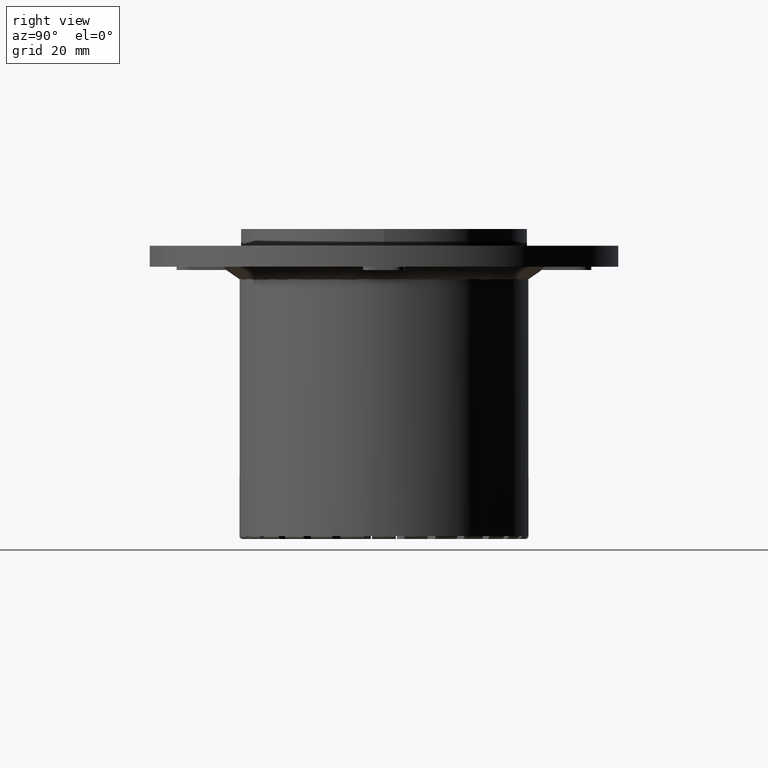
[diagram: clean part render]
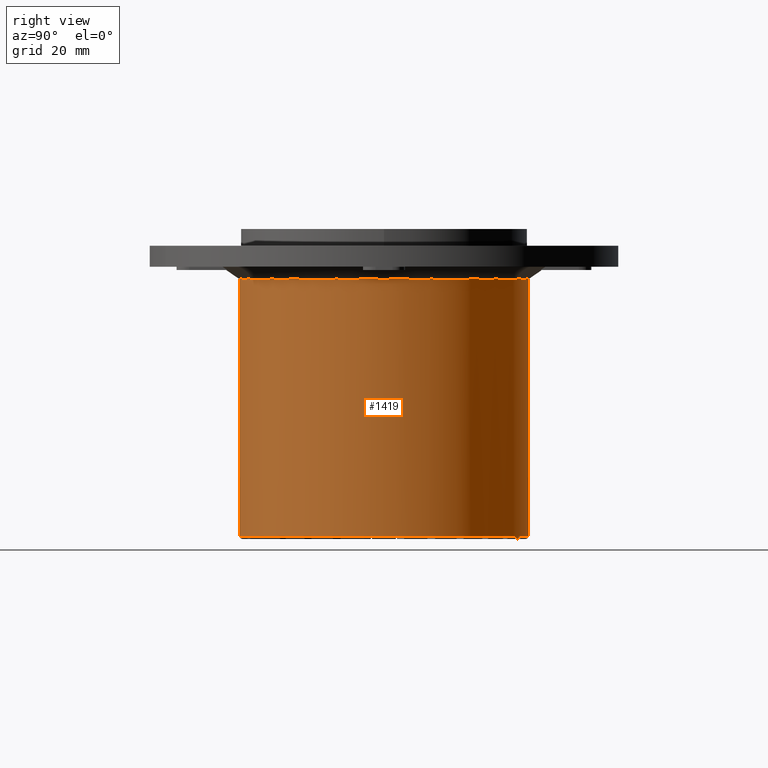
[diagram: same view with one face highlighted and labeled with its STEP entity id]
A machine part, right view. The second image highlights one B-rep face of the part: STEP entity #1419.
In plain terms, the highlighted cylindrical surface (bore or boss wall) has radius 34.5 mm, axis along (0, 0, 1).
Its self-contained STEP definition (entity closure, byte-faithful):
#692=CARTESIAN_POINT('',(4.872188245533611,34.154235194190548,0.0));
#693=VERTEX_POINT('',#692);
#707=CARTESIAN_POINT('',(10.429277344970007,32.885865870639549,0.0));
#708=VERTEX_POINT('',#707);
#709=CARTESIAN_POINT('',(0.0,0.0,0.0));
#710=DIRECTION('',(0.0,0.0,-1.0));
#711=DIRECTION('',(0.222520933956314,0.974927912181824,0.0));
#712=AXIS2_PLACEMENT_3D('',#709,#710,#711);
#713=CIRCLE('',#712,34.5);
#714=EDGE_CURVE('',#693,#708,#713,.T.);
#780=CARTESIAN_POINT('',(0.0,0.0,0.0));
#781=DIRECTION('',(0.0,0.0,1.0));
#782=DIRECTION('',(-1.0,0.0,0.0));
#783=AXIS2_PLACEMENT_3D('',#780,#781,#782);
#784=CYLINDRICAL_SURFACE('',#783,34.5);
#785=ORIENTED_EDGE('',*,*,#714,.F.);
#786=CARTESIAN_POINT('',(2.849999999999995,34.38208108884627,0.0));
#787=VERTEX_POINT('',#786);
#788=CARTESIAN_POINT('',(0.0,0.0,0.0));
#789=DIRECTION('',(0.0,0.0,-1.0));
#790=DIRECTION('',(-1.0,0.0,0.0));
#791=AXIS2_PLACEMENT_3D('',#788,#789,#790);
#792=CIRCLE('',#791,34.5);
#793=EDGE_CURVE('',#787,#693,#792,.T.);
#794=ORIENTED_EDGE('',*,*,#793,.F.);
#795=CARTESIAN_POINT('',(-2.850000000000005,34.38208108884627,0.0));
#796=VERTEX_POINT('',#795);
#797=CARTESIAN_POINT('',(0.0,0.0,0.0));
#798=DIRECTION('',(0.0,0.0,-1.0));
#799=DIRECTION('',(0.0,1.0,0.0));
#800=AXIS2_PLACEMENT_3D('',#797,#798,#799);
#801=CIRCLE('',#800,34.5);
#802=EDGE_CURVE('',#796,#787,#801,.T.);
#803=ORIENTED_EDGE('',*,*,#802,.F.);
#804=CARTESIAN_POINT('',(-4.872188245533614,34.154235194190548,0.0));
#805=VERTEX_POINT('',#804);
#806=CARTESIAN_POINT('',(0.0,0.0,0.0));
#807=DIRECTION('',(0.0,0.0,-1.0));
#808=DIRECTION('',(-1.0,0.0,0.0));
#809=AXIS2_PLACEMENT_3D('',#806,#807,#808);
#810=CIRCLE('',#809,34.5);
#811=EDGE_CURVE('',#805,#796,#810,.T.);
#812=ORIENTED_EDGE('',*,*,#811,.F.);
#813=CARTESIAN_POINT('',(-10.429277344970009,32.885865870639556,0.0));
#814=VERTEX_POINT('',#813);
#815=CARTESIAN_POINT('',(0.0,0.0,0.0));
#816=DIRECTION('',(0.0,0.0,-1.0));
#817=DIRECTION('',(-0.222520933956315,0.974927912181824,0.0));
#818=AXIS2_PLACEMENT_3D('',#815,#816,#817);
#819=CIRCLE('',#818,34.499999999999993);
#820=EDGE_CURVE('',#814,#805,#819,.T.);
#821=ORIENTED_EDGE('',*,*,#820,.F.);
#822=CARTESIAN_POINT('',(-12.350064627949813,32.213753331232041,0.0));
#823=VERTEX_POINT('',#822);
#824=CARTESIAN_POINT('',(0.0,0.0,0.0));
#825=DIRECTION('',(0.0,0.0,-1.0));
#826=DIRECTION('',(-1.0,0.0,0.0));
#827=AXIS2_PLACEMENT_3D('',#824,#825,#826);
#828=CIRCLE('',#827,34.5);
#829=EDGE_CURVE('',#823,#814,#828,.T.);
#830=ORIENTED_EDGE('',*,*,#829,.F.);
#831=CARTESIAN_POINT('',(-17.485587174993601,29.74061601826196,0.0));
#832=VERTEX_POINT('',#831);
#833=CARTESIAN_POINT('',(0.0,0.0,0.0));
#834=DIRECTION('',(0.0,0.0,-1.0));
#835=DIRECTION('',(-0.433883739117558,0.900968867902419,0.0));
#836=AXIS2_PLACEMENT_3D('',#833,#834,#835);
#837=CIRCLE('',#836,34.5);
#838=EDGE_CURVE('',#832,#823,#837,.T.);
#839=ORIENTED_EDGE('',*,*,#838,.F.);
#840=CARTESIAN_POINT('',(-19.20865720054179,28.657939363326083,0.0));
#841=VERTEX_POINT('',#840);
#842=CARTESIAN_POINT('',(0.0,0.0,0.0));
#843=DIRECTION('',(0.0,0.0,-1.0));
#844=DIRECTION('',(-1.0,0.0,0.0));
#845=AXIS2_PLACEMENT_3D('',#842,#843,#844);
#846=CIRCLE('',#845,34.5);
#847=EDGE_CURVE('',#841,#832,#846,.T.);
#848=ORIENTED_EDGE('',*,*,#847,.F.);
#849=CARTESIAN_POINT('',(-23.665096650609563,25.104047492731301,0.0));
#850=VERTEX_POINT('',#849);
#851=CARTESIAN_POINT('',(0.0,0.0,0.0));
#852=DIRECTION('',(0.0,0.0,-1.0));
#853=DIRECTION('',(-0.623489801858734,0.78183148246803,0.0));
#854=AXIS2_PLACEMENT_3D('',#851,#852,#853);
#855=CIRCLE('',#854,34.5);
#856=EDGE_CURVE('',#850,#841,#855,.T.);
#857=ORIENTED_EDGE('',*,*,#856,.F.);
#858=CARTESIAN_POINT('',(-25.104047492731301,23.665096650609556,0.0));
#859=VERTEX_POINT('',#858);
#860=CARTESIAN_POINT('',(0.0,0.0,0.0));
#861=DIRECTION('',(0.0,0.0,-1.0));
#862=DIRECTION('',(-1.0,0.0,0.0));
#863=AXIS2_PLACEMENT_3D('',#860,#861,#862);
#864=CIRCLE('',#863,34.5);
#865=EDGE_CURVE('',#859,#850,#864,.T.);
#866=ORIENTED_EDGE('',*,*,#865,.F.);
#867=CARTESIAN_POINT('',(-28.657939363326079,19.208657200541779,0.0));
#868=VERTEX_POINT('',#867);
#869=CARTESIAN_POINT('',(0.0,0.0,0.0));
#870=DIRECTION('',(0.0,0.0,-1.0));
#871=DIRECTION('',(-0.78183148246803,0.623489801858733,0.0));
#872=AXIS2_PLACEMENT_3D('',#869,#870,#871);
#873=CIRCLE('',#872,34.5);
#874=EDGE_CURVE('',#868,#859,#873,.T.);
#875=ORIENTED_EDGE('',*,*,#874,.F.);
#876=CARTESIAN_POINT('',(-29.740616018261953,17.485587174993597,0.0));
#877=VERTEX_POINT('',#876);
#878=CARTESIAN_POINT('',(0.0,0.0,0.0));
#879=DIRECTION('',(0.0,0.0,-1.0));
#880=DIRECTION('',(-1.0,0.0,0.0));
#881=AXIS2_PLACEMENT_3D('',#878,#879,#880);
#882=CIRCLE('',#881,34.5);
#883=EDGE_CURVE('',#877,#868,#882,.T.);
#884=ORIENTED_EDGE('',*,*,#883,.F.);
#885=CARTESIAN_POINT('',(-32.213753331232041,12.350064627949809,0.0));
#886=VERTEX_POINT('',#885);
#887=CARTESIAN_POINT('',(0.0,0.0,0.0));
#888=DIRECTION('',(0.0,0.0,-1.0));
#889=DIRECTION('',(-0.900968867902419,0.433883739117558,0.0));
#890=AXIS2_PLACEMENT_3D('',#887,#888,#889);
#891=CIRCLE('',#890,34.5);
#892=EDGE_CURVE('',#886,#877,#891,.T.);
#893=ORIENTED_EDGE('',*,*,#892,.F.);
#894=CARTESIAN_POINT('',(-32.885865870639563,10.429277344970004,0.0));
#895=VERTEX_POINT('',#894);
#896=CARTESIAN_POINT('',(0.0,0.0,0.0));
#897=DIRECTION('',(0.0,0.0,-1.0));
#898=DIRECTION('',(-1.0,0.0,0.0));
#899=AXIS2_PLACEMENT_3D('',#896,#897,#898);
#900=CIRCLE('',#899,34.5);
#901=EDGE_CURVE('',#895,#886,#900,.T.);
#902=ORIENTED_EDGE('',*,*,#901,.F.);
#903=CARTESIAN_POINT('',(-34.154235194190555,4.872188245533607,0.0));
#904=VERTEX_POINT('',#903);
#905=CARTESIAN_POINT('',(0.0,0.0,0.0));
#906=DIRECTION('',(0.0,0.0,-1.0));
#907=DIRECTION('',(-0.974927912181824,0.222520933956314,0.0));
#908=AXIS2_PLACEMENT_3D('',#905,#906,#907);
#909=CIRCLE('',#908,34.5);
#910=EDGE_CURVE('',#904,#895,#909,.T.);
#911=ORIENTED_EDGE('',*,*,#910,.F.);
#912=CARTESIAN_POINT('',(-34.382081088846277,2.849999999999997,0.0));
#913=VERTEX_POINT('',#912);
#914=CARTESIAN_POINT('',(0.0,0.0,0.0));
#915=DIRECTION('',(0.0,0.0,-1.0));
#916=DIRECTION('',(-1.0,0.0,0.0));
#917=AXIS2_PLACEMENT_3D('',#914,#915,#916);
#918=CIRCLE('',#917,34.5);
#919=EDGE_CURVE('',#913,#904,#918,.T.);
#920=ORIENTED_EDGE('',*,*,#919,.F.);
#921=CARTESIAN_POINT('',(-34.382081088846277,-2.850000000000003,0.0));
#922=VERTEX_POINT('',#921);
#923=CARTESIAN_POINT('',(0.0,0.0,0.0));
#924=DIRECTION('',(0.0,0.0,-1.0));
#925=DIRECTION('',(-1.0,0.0,0.0));
#926=AXIS2_PLACEMENT_3D('',#923,#924,#925);
#927=CIRCLE('',#926,34.5);
#928=EDGE_CURVE('',#922,#913,#927,.T.);
#929=ORIENTED_EDGE('',*,*,#928,.F.);
#930=CARTESIAN_POINT('',(-34.154235194190548,-4.872188245533613,0.0));
#931=VERTEX_POINT('',#930);
#932=CARTESIAN_POINT('',(0.0,0.0,0.0));
#933=DIRECTION('',(0.0,0.0,-1.0));
#934=DIRECTION('',(-1.0,0.0,0.0));
#935=AXIS2_PLACEMENT_3D('',#932,#933,#934);
#936=CIRCLE('',#935,34.5);
#937=EDGE_CURVE('',#931,#922,#936,.T.);
#938=ORIENTED_EDGE('',*,*,#937,.F.);
#939=CARTESIAN_POINT('',(-32.885865870639556,-10.429277344970007,0.0));
#940=VERTEX_POINT('',#939);
#941=CARTESIAN_POINT('',(0.0,0.0,0.0));
#942=DIRECTION('',(0.0,0.0,-1.0));
#943=DIRECTION('',(-0.974927912181824,-0.222520933956314,0.0));
#944=AXIS2_PLACEMENT_3D('',#941,#942,#943);
#945=CIRCLE('',#944,34.499999999999993);
#946=EDGE_CURVE('',#940,#931,#945,.T.);
#947=ORIENTED_EDGE('',*,*,#946,.F.);
#948=CARTESIAN_POINT('',(-32.213753331232041,-12.350064627949813,0.0));
#949=VERTEX_POINT('',#948);
#950=CARTESIAN_POINT('',(0.0,0.0,0.0));
#951=DIRECTION('',(0.0,0.0,-1.0));
#952=DIRECTION('',(-1.0,0.0,0.0));
#953=AXIS2_PLACEMENT_3D('',#950,#951,#952);
#954=CIRCLE('',#953,34.5);
#955=EDGE_CURVE('',#949,#940,#954,.T.);
#956=ORIENTED_EDGE('',*,*,#955,.F.);
#957=CARTESIAN_POINT('',(-29.74061601826196,-17.485587174993601,0.0));
#958=VERTEX_POINT('',#957);
#959=CARTESIAN_POINT('',(0.0,0.0,0.0));
#960=DIRECTION('',(0.0,0.0,-1.0));
#961=DIRECTION('',(-0.900968867902419,-0.433883739117558,0.0));
#962=AXIS2_PLACEMENT_3D('',#959,#960,#961);
#963=CIRCLE('',#962,34.5);
#964=EDGE_CURVE('',#958,#949,#963,.T.);
#965=ORIENTED_EDGE('',*,*,#964,.F.);
#966=CARTESIAN_POINT('',(-28.657939363326083,-19.208657200541786,0.0));
#967=VERTEX_POINT('',#966);
#968=CARTESIAN_POINT('',(0.0,0.0,0.0));
#969=DIRECTION('',(0.0,0.0,-1.0));
#970=DIRECTION('',(-1.0,0.0,0.0));
#971=AXIS2_PLACEMENT_3D('',#968,#969,#970);
#972=CIRCLE('',#971,34.5);
#973=EDGE_CURVE('',#967,#958,#972,.T.);
#974=ORIENTED_EDGE('',*,*,#973,.F.);
#975=CARTESIAN_POINT('',(-25.104047492731301,-23.665096650609556,0.0));
#976=VERTEX_POINT('',#975);
#977=CARTESIAN_POINT('',(0.0,0.0,0.0));
#978=DIRECTION('',(0.0,0.0,-1.0));
#979=DIRECTION('',(-0.78183148246803,-0.623489801858734,0.0));
#980=AXIS2_PLACEMENT_3D('',#977,#978,#979);
#981=CIRCLE('',#980,34.5);
#982=EDGE_CURVE('',#976,#967,#981,.T.);
#983=ORIENTED_EDGE('',*,*,#982,.F.);
#984=CARTESIAN_POINT('',(-23.665096650609549,-25.104047492731297,0.0));
#985=VERTEX_POINT('',#984);
#986=CARTESIAN_POINT('',(0.0,0.0,0.0));
#987=DIRECTION('',(0.0,0.0,-1.0));
#988=DIRECTION('',(-1.0,0.0,0.0));
#989=AXIS2_PLACEMENT_3D('',#986,#987,#988);
#990=CIRCLE('',#989,34.5);
#991=EDGE_CURVE('',#985,#976,#990,.T.);
#992=ORIENTED_EDGE('',*,*,#991,.F.);
#993=CARTESIAN_POINT('',(-19.208657200541779,-28.657939363326079,0.0));
#994=VERTEX_POINT('',#993);
#995=CARTESIAN_POINT('',(0.0,0.0,0.0));
#996=DIRECTION('',(0.0,0.0,-1.0));
#997=DIRECTION('',(-0.623489801858733,-0.78183148246803,0.0));
#998=AXIS2_PLACEMENT_3D('',#995,#996,#997);
#999=CIRCLE('',#998,34.5);
#1000=EDGE_CURVE('',#994,#985,#999,.T.);
#1001=ORIENTED_EDGE('',*,*,#1000,.F.);
#1002=CARTESIAN_POINT('',(-17.485587174993601,-29.74061601826196,0.0));
#1003=VERTEX_POINT('',#1002);
#1004=CARTESIAN_POINT('',(0.0,0.0,0.0));
#1005=DIRECTION('',(0.0,0.0,-1.0));
#1006=DIRECTION('',(-1.0,0.0,0.0));
#1007=AXIS2_PLACEMENT_3D('',#1004,#1005,#1006);
#1008=CIRCLE('',#1007,34.5);
#1009=EDGE_CURVE('',#1003,#994,#1008,.T.);
#1010=ORIENTED_EDGE('',*,*,#1009,.F.);
#1011=CARTESIAN_POINT('',(-12.350064627949813,-32.213753331232041,0.0));
#1012=VERTEX_POINT('',#1011);
#1013=CARTESIAN_POINT('',(0.0,0.0,0.0));
#1014=DIRECTION('',(0.0,0.0,-1.0));
#1015=DIRECTION('',(-0.433883739117558,-0.900968867902419,0.0));
#1016=AXIS2_PLACEMENT_3D('',#1013,#1014,#1015);
#1017=CIRCLE('',#1016,34.5);
#1018=EDGE_CURVE('',#1012,#1003,#1017,.T.);
#1019=ORIENTED_EDGE('',*,*,#1018,.F.);
#1020=CARTESIAN_POINT('',(-10.429277344970005,-32.885865870639563,0.0));
#1021=VERTEX_POINT('',#1020);
#1022=CARTESIAN_POINT('',(0.0,0.0,0.0));
#1023=DIRECTION('',(0.0,0.0,-1.0));
#1024=DIRECTION('',(-1.0,0.0,0.0));
#1025=AXIS2_PLACEMENT_3D('',#1022,#1023,#1024);
#1026=CIRCLE('',#1025,34.5);
#1027=EDGE_CURVE('',#1021,#1012,#1026,.T.);
#1028=ORIENTED_EDGE('',*,*,#1027,.F.);
#1029=CARTESIAN_POINT('',(-4.872188245533607,-34.154235194190555,0.0));
#1030=VERTEX_POINT('',#1029);
#1031=CARTESIAN_POINT('',(0.0,0.0,0.0));
#1032=DIRECTION('',(0.0,0.0,-1.0));
#1033=DIRECTION('',(-0.222520933956314,-0.974927912181824,0.0));
#1034=AXIS2_PLACEMENT_3D('',#1031,#1032,#1033);
#1035=CIRCLE('',#1034,34.5);
#1036=EDGE_CURVE('',#1030,#1021,#1035,.T.);
#1037=ORIENTED_EDGE('',*,*,#1036,.F.);
#1038=CARTESIAN_POINT('',(-2.849999999999999,-34.382081088846277,0.0));
#1039=VERTEX_POINT('',#1038);
#1040=CARTESIAN_POINT('',(0.0,0.0,0.0));
#1041=DIRECTION('',(0.0,0.0,-1.0));
#1042=DIRECTION('',(-1.0,0.0,0.0));
#1043=AXIS2_PLACEMENT_3D('',#1040,#1041,#1042);
#1044=CIRCLE('',#1043,34.5);
#1045=EDGE_CURVE('',#1039,#1030,#1044,.T.);
#1046=ORIENTED_EDGE('',*,*,#1045,.F.);
#1047=CARTESIAN_POINT('',(2.850000000000001,-34.382081088846277,0.0));
#1048=VERTEX_POINT('',#1047);
#1049=CARTESIAN_POINT('',(0.0,0.0,0.0));
#1050=DIRECTION('',(0.0,0.0,-1.0));
#1051=DIRECTION('',(0.0,-1.0,0.0));
#1052=AXIS2_PLACEMENT_3D('',#1049,#1050,#1051);
#1053=CIRCLE('',#1052,34.5);
#1054=EDGE_CURVE('',#1048,#1039,#1053,.T.);
#1055=ORIENTED_EDGE('',*,*,#1054,.F.);
#1056=CARTESIAN_POINT('',(4.872188245533611,-34.154235194190548,0.0));
#1057=VERTEX_POINT('',#1056);
#1058=CARTESIAN_POINT('',(0.0,0.0,0.0));
#1059=DIRECTION('',(0.0,0.0,-1.0));
#1060=DIRECTION('',(-1.0,0.0,0.0));
#1061=AXIS2_PLACEMENT_3D('',#1058,#1059,#1060);
#1062=CIRCLE('',#1061,34.5);
#1063=EDGE_CURVE('',#1057,#1048,#1062,.T.);
#1064=ORIENTED_EDGE('',*,*,#1063,.F.);
#1065=CARTESIAN_POINT('',(10.429277344970005,-32.885865870639563,0.0));
#1066=VERTEX_POINT('',#1065);
#1067=CARTESIAN_POINT('',(0.0,0.0,0.0));
#1068=DIRECTION('',(0.0,0.0,-1.0));
#1069=DIRECTION('',(0.222520933956314,-0.974927912181824,0.0));
#1070=AXIS2_PLACEMENT_3D('',#1067,#1068,#1069);
#1071=CIRCLE('',#1070,34.5);
#1072=EDGE_CURVE('',#1066,#1057,#1071,.T.);
#1073=ORIENTED_EDGE('',*,*,#1072,.F.);
#1074=CARTESIAN_POINT('',(12.350064627949811,-32.213753331232041,0.0));
#1075=VERTEX_POINT('',#1074);
#1076=CARTESIAN_POINT('',(0.0,0.0,0.0));
#1077=DIRECTION('',(0.0,0.0,-1.0));
#1078=DIRECTION('',(-1.0,0.0,0.0));
#1079=AXIS2_PLACEMENT_3D('',#1076,#1077,#1078);
#1080=CIRCLE('',#1079,34.5);
#1081=EDGE_CURVE('',#1075,#1066,#1080,.T.);
#1082=ORIENTED_EDGE('',*,*,#1081,.F.);
#1083=CARTESIAN_POINT('',(17.485587174993601,-29.74061601826196,0.0));
#1084=VERTEX_POINT('',#1083);
#1085=CARTESIAN_POINT('',(0.0,0.0,0.0));
#1086=DIRECTION('',(0.0,0.0,-1.0));
#1087=DIRECTION('',(0.433883739117558,-0.900968867902419,0.0));
#1088=AXIS2_PLACEMENT_3D('',#1085,#1086,#1087);
#1089=CIRCLE('',#1088,34.5);
#1090=EDGE_CURVE('',#1084,#1075,#1089,.T.);
#1091=ORIENTED_EDGE('',*,*,#1090,.F.);
#1092=CARTESIAN_POINT('',(19.208657200541779,-28.657939363326079,0.0));
#1093=VERTEX_POINT('',#1092);
#1094=CARTESIAN_POINT('',(0.0,0.0,0.0));
#1095=DIRECTION('',(0.0,0.0,-1.0));
#1096=DIRECTION('',(-1.0,0.0,0.0));
#1097=AXIS2_PLACEMENT_3D('',#1094,#1095,#1096);
#1098=CIRCLE('',#1097,34.5);
#1099=EDGE_CURVE('',#1093,#1084,#1098,.T.);
#1100=ORIENTED_EDGE('',*,*,#1099,.F.);
#1101=CARTESIAN_POINT('',(23.665096650609556,-25.104047492731301,0.0));
#1102=VERTEX_POINT('',#1101);
#1103=CARTESIAN_POINT('',(0.0,0.0,0.0));
#1104=DIRECTION('',(0.0,0.0,-1.0));
#1105=DIRECTION('',(0.623489801858734,-0.78183148246803,0.0));
#1106=AXIS2_PLACEMENT_3D('',#1103,#1104,#1105);
#1107=CIRCLE('',#1106,34.5);
#1108=EDGE_CURVE('',#1102,#1093,#1107,.T.);
#1109=ORIENTED_EDGE('',*,*,#1108,.F.);
#1110=CARTESIAN_POINT('',(25.104047492731297,-23.665096650609556,0.0));
#1111=VERTEX_POINT('',#1110);
#1112=CARTESIAN_POINT('',(0.0,0.0,0.0));
#1113=DIRECTION('',(0.0,0.0,-1.0));
#1114=DIRECTION('',(-1.0,0.0,0.0));
#1115=AXIS2_PLACEMENT_3D('',#1112,#1113,#1114);
#1116=CIRCLE('',#1115,34.5);
#1117=EDGE_CURVE('',#1111,#1102,#1116,.T.);
#1118=ORIENTED_EDGE('',*,*,#1117,.F.);
#1119=CARTESIAN_POINT('',(28.657939363326079,-19.208657200541786,0.0));
#1120=VERTEX_POINT('',#1119);
#1121=CARTESIAN_POINT('',(0.0,0.0,0.0));
#1122=DIRECTION('',(0.0,0.0,-1.0));
#1123=DIRECTION('',(0.78183148246803,-0.623489801858734,0.0));
#1124=AXIS2_PLACEMENT_3D('',#1121,#1122,#1123);
#1125=CIRCLE('',#1124,34.5);
#1126=EDGE_CURVE('',#1120,#1111,#1125,.T.);
#1127=ORIENTED_EDGE('',*,*,#1126,.F.);
#1128=CARTESIAN_POINT('',(29.74061601826196,-17.485587174993601,0.0));
#1129=VERTEX_POINT('',#1128);
#1130=CARTESIAN_POINT('',(0.0,0.0,0.0));
#1131=DIRECTION('',(0.0,0.0,-1.0));
#1132=DIRECTION('',(-1.0,0.0,0.0));
#1133=AXIS2_PLACEMENT_3D('',#1130,#1131,#1132);
#1134=CIRCLE('',#1133,34.5);
#1135=EDGE_CURVE('',#1129,#1120,#1134,.T.);
#1136=ORIENTED_EDGE('',*,*,#1135,.F.);
#1137=CARTESIAN_POINT('',(32.213753331232041,-12.350064627949813,0.0));
#1138=VERTEX_POINT('',#1137);
#1139=CARTESIAN_POINT('',(0.0,0.0,0.0));
#1140=DIRECTION('',(0.0,0.0,-1.0));
#1141=DIRECTION('',(0.900968867902419,-0.433883739117558,0.0));
#1142=AXIS2_PLACEMENT_3D('',#1139,#1140,#1141);
#1143=CIRCLE('',#1142,34.5);
#1144=EDGE_CURVE('',#1138,#1129,#1143,.T.);
#1145=ORIENTED_EDGE('',*,*,#1144,.F.);
#1146=CARTESIAN_POINT('',(32.885865870639563,-10.429277344970005,0.0));
#1147=VERTEX_POINT('',#1146);
#1148=CARTESIAN_POINT('',(0.0,0.0,0.0));
#1149=DIRECTION('',(0.0,0.0,-1.0));
#1150=DIRECTION('',(-1.0,0.0,0.0));
#1151=AXIS2_PLACEMENT_3D('',#1148,#1149,#1150);
#1152=CIRCLE('',#1151,34.5);
#1153=EDGE_CURVE('',#1147,#1138,#1152,.T.);
#1154=ORIENTED_EDGE('',*,*,#1153,.F.);
#1155=CARTESIAN_POINT('',(34.154235194190555,-4.872188245533607,0.0));
#1156=VERTEX_POINT('',#1155);
#1157=CARTESIAN_POINT('',(0.0,0.0,0.0));
#1158=DIRECTION('',(0.0,0.0,-1.0));
#1159=DIRECTION('',(0.974927912181824,-0.222520933956314,0.0));
#1160=AXIS2_PLACEMENT_3D('',#1157,#1158,#1159);
#1161=CIRCLE('',#1160,34.5);
#1162=EDGE_CURVE('',#1156,#1147,#1161,.T.);
#1163=ORIENTED_EDGE('',*,*,#1162,.F.);
#1164=CARTESIAN_POINT('',(34.382081088846277,-2.850000000000001,0.0));
#1165=VERTEX_POINT('',#1164);
#1166=CARTESIAN_POINT('',(0.0,0.0,0.0));
#1167=DIRECTION('',(0.0,0.0,-1.0));
#1168=DIRECTION('',(-1.0,0.0,0.0));
#1169=AXIS2_PLACEMENT_3D('',#1166,#1167,#1168);
#1170=CIRCLE('',#1169,34.5);
#1171=EDGE_CURVE('',#1165,#1156,#1170,.T.);
#1172=ORIENTED_EDGE('',*,*,#1171,.F.);
#1173=CARTESIAN_POINT('',(34.382081088846277,2.850000000000001,0.0));
#1174=VERTEX_POINT('',#1173);
#1175=CARTESIAN_POINT('',(0.0,0.0,0.0));
#1176=DIRECTION('',(0.0,0.0,-1.0));
#1177=DIRECTION('',(1.0,0.0,0.0));
#1178=AXIS2_PLACEMENT_3D('',#1175,#1176,#1177);
#1179=CIRCLE('',#1178,34.5);
#1180=EDGE_CURVE('',#1174,#1165,#1179,.T.);
#1181=ORIENTED_EDGE('',*,*,#1180,.F.);
#1182=CARTESIAN_POINT('',(34.154235194190548,4.872188245533609,0.0));
#1183=VERTEX_POINT('',#1182);
#1184=CARTESIAN_POINT('',(0.0,0.0,0.0));
#1185=DIRECTION('',(0.0,0.0,-1.0));
#1186=DIRECTION('',(-1.0,0.0,0.0));
#1187=AXIS2_PLACEMENT_3D('',#1184,#1185,#1186);
#1188=CIRCLE('',#1187,34.5);
#1189=EDGE_CURVE('',#1183,#1174,#1188,.T.);
#1190=ORIENTED_EDGE('',*,*,#1189,.F.);
#1191=CARTESIAN_POINT('',(32.885865870639563,10.429277344970004,0.0));
#1192=VERTEX_POINT('',#1191);
#1193=CARTESIAN_POINT('',(0.0,0.0,0.0));
#1194=DIRECTION('',(0.0,0.0,-1.0));
#1195=DIRECTION('',(0.974927912181824,0.222520933956314,0.0));
#1196=AXIS2_PLACEMENT_3D('',#1193,#1194,#1195);
#1197=CIRCLE('',#1196,34.5);
#1198=EDGE_CURVE('',#1192,#1183,#1197,.T.);
#1199=ORIENTED_EDGE('',*,*,#1198,.F.);
#1200=CARTESIAN_POINT('',(32.213753331232041,12.350064627949809,0.0));
#1201=VERTEX_POINT('',#1200);
#1202=CARTESIAN_POINT('',(0.0,0.0,0.0));
#1203=DIRECTION('',(0.0,0.0,-1.0));
#1204=DIRECTION('',(-1.0,0.0,0.0));
#1205=AXIS2_PLACEMENT_3D('',#1202,#1203,#1204);
#1206=CIRCLE('',#1205,34.5);
#1207=EDGE_CURVE('',#1201,#1192,#1206,.T.);
#1208=ORIENTED_EDGE('',*,*,#1207,.F.);
#1209=CARTESIAN_POINT('',(29.740616018261964,17.485587174993597,0.0));
#1210=VERTEX_POINT('',#1209);
#1211=CARTESIAN_POINT('',(0.0,0.0,0.0));
#1212=DIRECTION('',(0.0,0.0,-1.0));
#1213=DIRECTION('',(0.900968867902419,0.433883739117558,0.0));
#1214=AXIS2_PLACEMENT_3D('',#1211,#1212,#1213);
#1215=CIRCLE('',#1214,34.5);
#1216=EDGE_CURVE('',#1210,#1201,#1215,.T.);
#1217=ORIENTED_EDGE('',*,*,#1216,.F.);
#1218=CARTESIAN_POINT('',(28.657939363326079,19.208657200541779,0.0));
#1219=VERTEX_POINT('',#1218);
#1220=CARTESIAN_POINT('',(0.0,0.0,0.0));
#1221=DIRECTION('',(0.0,0.0,-1.0));
#1222=DIRECTION('',(-1.0,0.0,0.0));
#1223=AXIS2_PLACEMENT_3D('',#1220,#1221,#1222);
#1224=CIRCLE('',#1223,34.5);
#1225=EDGE_CURVE('',#1219,#1210,#1224,.T.);
#1226=ORIENTED_EDGE('',*,*,#1225,.F.);
#1227=CARTESIAN_POINT('',(25.104047492731301,23.665096650609556,0.0));
#1228=VERTEX_POINT('',#1227);
#1229=CARTESIAN_POINT('',(0.0,0.0,0.0));
#1230=DIRECTION('',(0.0,0.0,-1.0));
#1231=DIRECTION('',(0.78183148246803,0.623489801858734,0.0));
#1232=AXIS2_PLACEMENT_3D('',#1229,#1230,#1231);
#1233=CIRCLE('',#1232,34.5);
#1234=EDGE_CURVE('',#1228,#1219,#1233,.T.);
#1235=ORIENTED_EDGE('',*,*,#1234,.F.);
#1236=CARTESIAN_POINT('',(23.665096650609556,25.104047492731297,0.0));
#1237=VERTEX_POINT('',#1236);
#1238=CARTESIAN_POINT('',(0.0,0.0,0.0));
#1239=DIRECTION('',(0.0,0.0,-1.0));
#1240=DIRECTION('',(-1.0,0.0,0.0));
#1241=AXIS2_PLACEMENT_3D('',#1238,#1239,#1240);
#1242=CIRCLE('',#1241,34.5);
#1243=EDGE_CURVE('',#1237,#1228,#1242,.T.);
#1244=ORIENTED_EDGE('',*,*,#1243,.F.);
#1245=CARTESIAN_POINT('',(19.208657200541786,28.657939363326079,0.0));
#1246=VERTEX_POINT('',#1245);
#1247=CARTESIAN_POINT('',(0.0,0.0,0.0));
#1248=DIRECTION('',(0.0,0.0,-1.0));
#1249=DIRECTION('',(0.623489801858734,0.78183148246803,0.0));
#1250=AXIS2_PLACEMENT_3D('',#1247,#1248,#1249);
#1251=CIRCLE('',#1250,34.5);
#1252=EDGE_CURVE('',#1246,#1237,#1251,.T.);
#1253=ORIENTED_EDGE('',*,*,#1252,.F.);
#1254=CARTESIAN_POINT('',(17.485587174993601,29.74061601826196,0.0));
#1255=VERTEX_POINT('',#1254);
#1256=CARTESIAN_POINT('',(0.0,0.0,0.0));
#1257=DIRECTION('',(0.0,0.0,-1.0));
#1258=DIRECTION('',(-1.0,0.0,0.0));
#1259=AXIS2_PLACEMENT_3D('',#1256,#1257,#1258);
#1260=CIRCLE('',#1259,34.5);
#1261=EDGE_CURVE('',#1255,#1246,#1260,.T.);
#1262=ORIENTED_EDGE('',*,*,#1261,.F.);
#1263=CARTESIAN_POINT('',(12.350064627949813,32.213753331232041,0.0));
#1264=VERTEX_POINT('',#1263);
#1265=CARTESIAN_POINT('',(0.0,0.0,0.0));
#1266=DIRECTION('',(0.0,0.0,-1.0));
#1267=DIRECTION('',(0.433883739117558,0.900968867902419,0.0));
#1268=AXIS2_PLACEMENT_3D('',#1265,#1266,#1267);
#1269=CIRCLE('',#1268,34.5);
#1270=EDGE_CURVE('',#1264,#1255,#1269,.T.);
#1271=ORIENTED_EDGE('',*,*,#1270,.F.);
#1272=CARTESIAN_POINT('',(0.0,0.0,0.0));
#1273=DIRECTION('',(0.0,0.0,-1.0));
#1274=DIRECTION('',(-1.0,0.0,0.0));
#1275=AXIS2_PLACEMENT_3D('',#1272,#1273,#1274);
#1276=CIRCLE('',#1275,34.5);
#1277=EDGE_CURVE('',#708,#1264,#1276,.T.);
#1278=ORIENTED_EDGE('',*,*,#1277,.F.);
#1279=EDGE_LOOP('',(#785,#794,#803,#812,#821,#830,#839,#848,#857,#866,#875,#884,#893,#902,#911,#920,#929,#938,#947,#956,#965,#974,#983,#992,#1001,#1010,#1019,#1028,#1037,#1046,#1055,#1064,#1073,#1082,#1091,#1100,#1109,#1118,#1127,#1136,#1145,#1154,#1163,#1172,#1181,#1190,#1199,#1208,#1217,#1226,#1235,#1244,#1253,#1262,#1271,#1278));
#1280=FACE_OUTER_BOUND('',#1279,.T.);
#1281=CARTESIAN_POINT('',(34.13575837739657,-5.000000000000004,63.499999999999979));
#1282=VERTEX_POINT('',#1281);
#1283=CARTESIAN_POINT('',(34.13575837739657,-5.000000000000004,64.299999999999997));
#1284=VERTEX_POINT('',#1283);
#1285=CARTESIAN_POINT('',(34.13575837739657,-5.000000000000004,63.499999999999979));
#1286=DIRECTION('',(0.0,0.0,1.0));
#1287=VECTOR('',#1286,0.800000000000018);
#1288=LINE('',#1285,#1287);
#1289=EDGE_CURVE('',#1282,#1284,#1288,.T.);
#1290=ORIENTED_EDGE('',*,*,#1289,.T.);
#1291=CARTESIAN_POINT('',(4.999999999999999,-34.13575837739657,64.299999999999997));
#1292=VERTEX_POINT('',#1291);
#1293=CARTESIAN_POINT('',(0.0,0.0,64.299999999999997));
#1294=DIRECTION('',(0.0,0.0,-1.0));
#1295=DIRECTION('',(-1.0,0.0,0.0));
#1296=AXIS2_PLACEMENT_3D('',#1293,#1294,#1295);
#1297=CIRCLE('',#1296,34.5);
#1298=EDGE_CURVE('',#1284,#1292,#1297,.T.);
#1299=ORIENTED_EDGE('',*,*,#1298,.T.);
#1300=CARTESIAN_POINT('',(4.999999999999999,-34.13575837739657,63.499999999999979));
#1301=VERTEX_POINT('',#1300);
#1302=CARTESIAN_POINT('',(4.999999999999999,-34.13575837739657,64.299999999999997));
#1303=DIRECTION('',(0.0,0.0,-1.0));
#1304=VECTOR('',#1303,0.800000000000018);
#1305=LINE('',#1302,#1304);
#1306=EDGE_CURVE('',#1292,#1301,#1305,.T.);
#1307=ORIENTED_EDGE('',*,*,#1306,.T.);
#1308=CARTESIAN_POINT('',(-5.000000000000002,-34.13575837739657,63.499999999999979));
#1309=VERTEX_POINT('',#1308);
#1310=CARTESIAN_POINT('',(0.0,0.0,63.499999999999979));
#1311=DIRECTION('',(0.0,0.0,-1.0));
#1312=DIRECTION('',(-1.0,0.0,0.0));
#1313=AXIS2_PLACEMENT_3D('',#1310,#1311,#1312);
#1314=CIRCLE('',#1313,34.5);
#1315=EDGE_CURVE('',#1301,#1309,#1314,.T.);
#1316=ORIENTED_EDGE('',*,*,#1315,.T.);
#1317=CARTESIAN_POINT('',(-5.000000000000002,-34.13575837739657,64.299999999999997));
#1318=VERTEX_POINT('',#1317);
#1319=CARTESIAN_POINT('',(-5.000000000000002,-34.13575837739657,63.499999999999979));
#1320=DIRECTION('',(0.0,0.0,1.0));
#1321=VECTOR('',#1320,0.800000000000018);
#1322=LINE('',#1319,#1321);
#1323=EDGE_CURVE('',#1309,#1318,#1322,.T.);
#1324=ORIENTED_EDGE('',*,*,#1323,.T.);
#1325=CARTESIAN_POINT('',(-34.13575837739657,-5.000000000000001,64.299999999999997));
#1326=VERTEX_POINT('',#1325);
#1327=CARTESIAN_POINT('',(0.0,0.0,64.299999999999997));
#1328=DIRECTION('',(0.0,0.0,-1.0));
#1329=DIRECTION('',(-1.0,0.0,0.0));
#1330=AXIS2_PLACEMENT_3D('',#1327,#1328,#1329);
#1331=CIRCLE('',#1330,34.5);
#1332=EDGE_CURVE('',#1318,#1326,#1331,.T.);
#1333=ORIENTED_EDGE('',*,*,#1332,.T.);
#1334=CARTESIAN_POINT('',(-34.13575837739657,-5.000000000000001,63.499999999999979));
#1335=VERTEX_POINT('',#1334);
#1336=CARTESIAN_POINT('',(-34.13575837739657,-5.000000000000001,64.299999999999997));
#1337=DIRECTION('',(0.0,0.0,-1.0));
#1338=VECTOR('',#1337,0.800000000000018);
#1339=LINE('',#1336,#1338);
#1340=EDGE_CURVE('',#1326,#1335,#1339,.T.);
#1341=ORIENTED_EDGE('',*,*,#1340,.T.);
#1342=CARTESIAN_POINT('',(-34.13575837739657,5.0,63.499999999999979));
#1343=VERTEX_POINT('',#1342);
#1344=CARTESIAN_POINT('',(0.0,0.0,63.499999999999979));
#1345=DIRECTION('',(0.0,0.0,-1.0));
#1346=DIRECTION('',(-1.0,0.0,0.0));
#1347=AXIS2_PLACEMENT_3D('',#1344,#1345,#1346);
#1348=CIRCLE('',#1347,34.5);
#1349=EDGE_CURVE('',#1335,#1343,#1348,.T.);
#1350=ORIENTED_EDGE('',*,*,#1349,.T.);
#1351=CARTESIAN_POINT('',(-34.13575837739657,5.0,64.299999999999997));
#1352=VERTEX_POINT('',#1351);
#1353=CARTESIAN_POINT('',(-34.13575837739657,4.999999999999999,63.499999999999979));
#1354=DIRECTION('',(0.0,0.0,1.0));
#1355=VECTOR('',#1354,0.800000000000018);
#1356=LINE('',#1353,#1355);
#1357=EDGE_CURVE('',#1343,#1352,#1356,.T.);
#1358=ORIENTED_EDGE('',*,*,#1357,.T.);
#1359=CARTESIAN_POINT('',(-5.000000000000004,34.13575837739657,64.299999999999997));
#1360=VERTEX_POINT('',#1359);
#1361=CARTESIAN_POINT('',(0.0,0.0,64.299999999999997));
#1362=DIRECTION('',(0.0,0.0,-1.0));
#1363=DIRECTION('',(-1.0,0.0,0.0));
#1364=AXIS2_PLACEMENT_3D('',#1361,#1362,#1363);
#1365=CIRCLE('',#1364,34.5);
#1366=EDGE_CURVE('',#1352,#1360,#1365,.T.);
#1367=ORIENTED_EDGE('',*,*,#1366,.T.);
#1368=CARTESIAN_POINT('',(-5.000000000000004,34.13575837739657,63.499999999999979));
#1369=VERTEX_POINT('',#1368);
#1370=CARTESIAN_POINT('',(-5.000000000000004,34.13575837739657,64.299999999999997));
#1371=DIRECTION('',(0.0,0.0,-1.0));
#1372=VECTOR('',#1371,0.800000000000018);
#1373=LINE('',#1370,#1372);
#1374=EDGE_CURVE('',#1360,#1369,#1373,.T.);
#1375=ORIENTED_EDGE('',*,*,#1374,.T.);
#1376=CARTESIAN_POINT('',(4.999999999999998,34.13575837739657,63.499999999999979));
#1377=VERTEX_POINT('',#1376);
#1378=CARTESIAN_POINT('',(0.0,0.0,63.499999999999979));
#1379=DIRECTION('',(0.0,0.0,-1.0));
#1380=DIRECTION('',(-1.0,0.0,0.0));
#1381=AXIS2_PLACEMENT_3D('',#1378,#1379,#1380);
#1382=CIRCLE('',#1381,34.5);
#1383=EDGE_CURVE('',#1369,#1377,#1382,.T.);
#1384=ORIENTED_EDGE('',*,*,#1383,.T.);
#1385=CARTESIAN_POINT('',(4.999999999999998,34.13575837739657,64.299999999999997));
#1386=VERTEX_POINT('',#1385);
#1387=CARTESIAN_POINT('',(4.999999999999998,34.13575837739657,63.499999999999979));
#1388=DIRECTION('',(0.0,0.0,1.0));
#1389=VECTOR('',#1388,0.800000000000018);
#1390=LINE('',#1387,#1389);
#1391=EDGE_CURVE('',#1377,#1386,#1390,.T.);
#1392=ORIENTED_EDGE('',*,*,#1391,.T.);
#1393=CARTESIAN_POINT('',(34.13575837739657,4.999999999999996,64.299999999999997));
#1394=VERTEX_POINT('',#1393);
#1395=CARTESIAN_POINT('',(0.0,0.0,64.299999999999997));
#1396=DIRECTION('',(0.0,0.0,-1.0));
#1397=DIRECTION('',(-1.0,0.0,0.0));
#1398=AXIS2_PLACEMENT_3D('',#1395,#1396,#1397);
#1399=CIRCLE('',#1398,34.5);
#1400=EDGE_CURVE('',#1386,#1394,#1399,.T.);
#1401=ORIENTED_EDGE('',*,*,#1400,.T.);
#1402=CARTESIAN_POINT('',(34.13575837739657,4.999999999999996,63.499999999999979));
#1403=VERTEX_POINT('',#1402);
#1404=CARTESIAN_POINT('',(34.13575837739657,4.999999999999997,64.299999999999997));
#1405=DIRECTION('',(0.0,0.0,-1.0));
#1406=VECTOR('',#1405,0.800000000000018);
#1407=LINE('',#1404,#1406);
#1408=EDGE_CURVE('',#1394,#1403,#1407,.T.);
#1409=ORIENTED_EDGE('',*,*,#1408,.T.);
#1410=CARTESIAN_POINT('',(0.0,0.0,63.499999999999979));
#1411=DIRECTION('',(0.0,0.0,-1.0));
#1412=DIRECTION('',(-1.0,0.0,0.0));
#1413=AXIS2_PLACEMENT_3D('',#1410,#1411,#1412);
#1414=CIRCLE('',#1413,34.5);
#1415=EDGE_CURVE('',#1403,#1282,#1414,.T.);
#1416=ORIENTED_EDGE('',*,*,#1415,.T.);
#1417=EDGE_LOOP('',(#1290,#1299,#1307,#1316,#1324,#1333,#1341,#1350,#1358,#1367,#1375,#1384,#1392,#1401,#1409,#1416));
#1418=FACE_BOUND('',#1417,.T.);
#1419=ADVANCED_FACE('',(#1280,#1418),#784,.T.);